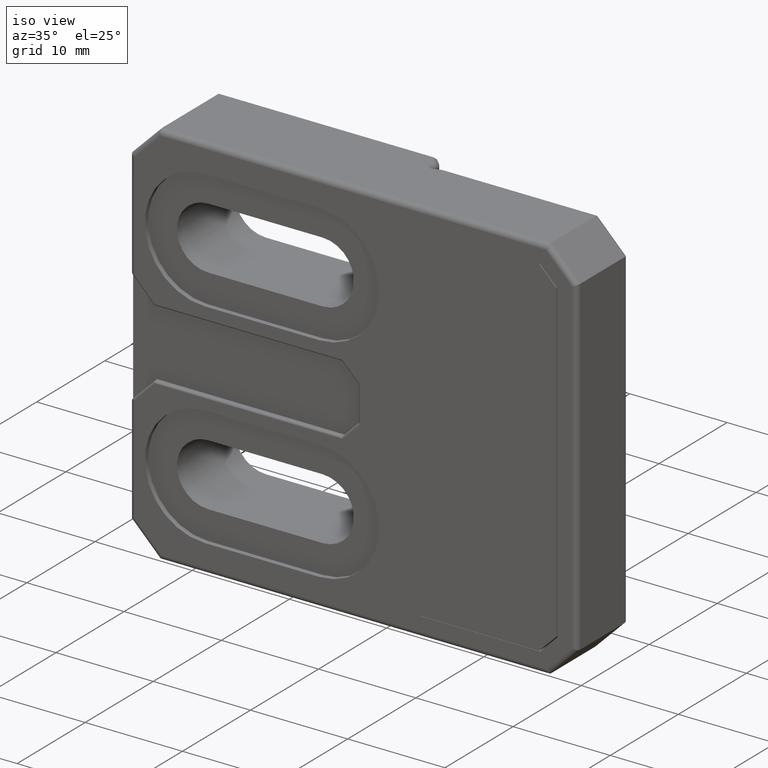
[diagram: clean part render]
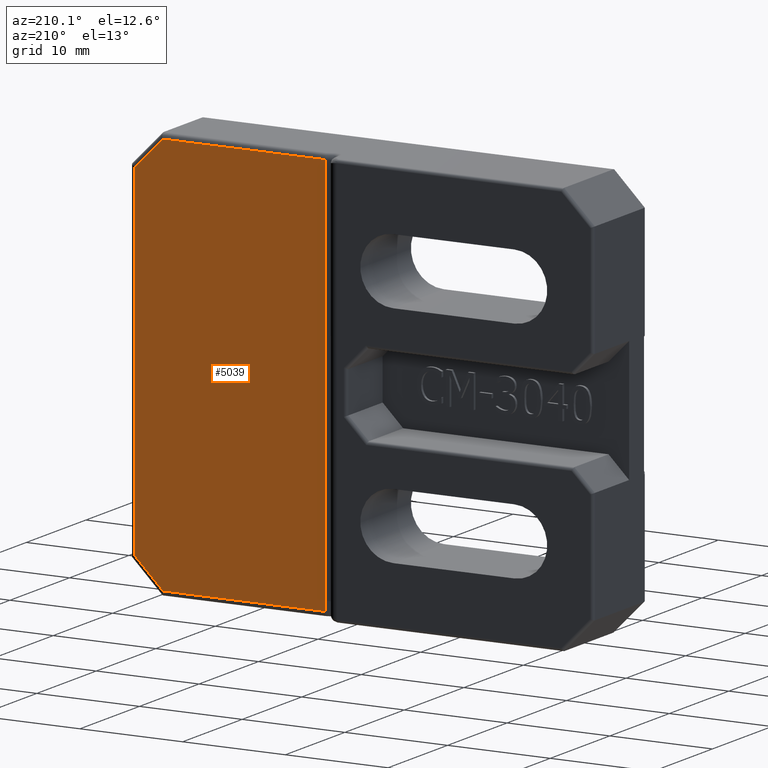
[diagram: tour spotlight — one face highlighted and labeled with its STEP entity id]
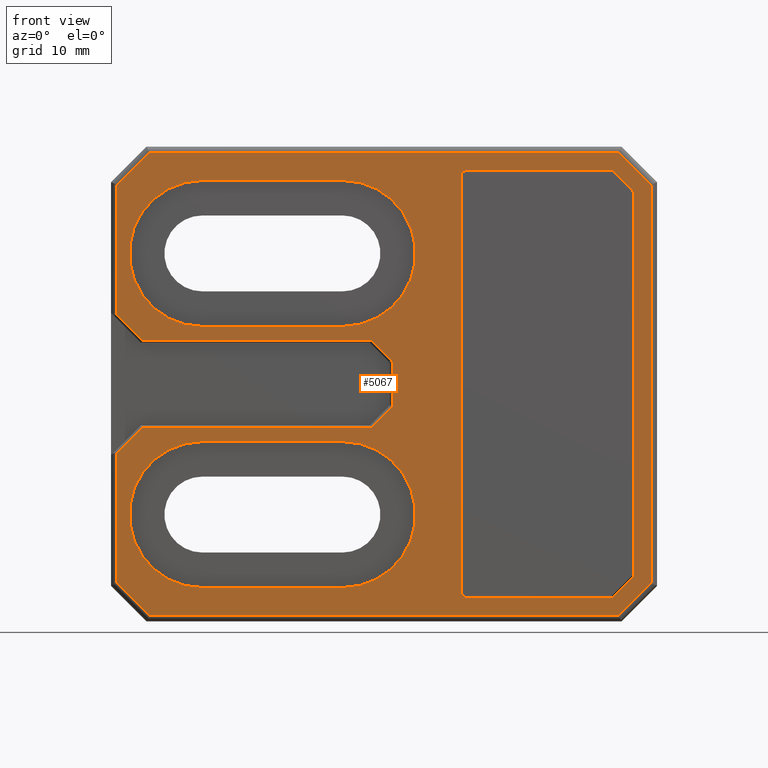
[diagram: tour spotlight — one face highlighted and labeled with its STEP entity id]
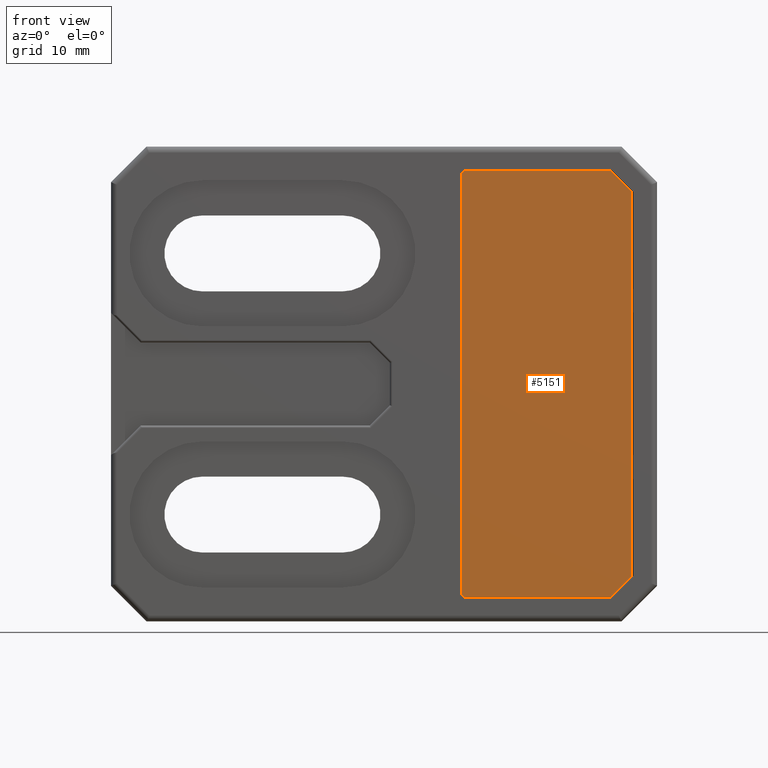
[diagram: tour spotlight — one face highlighted and labeled with its STEP entity id]
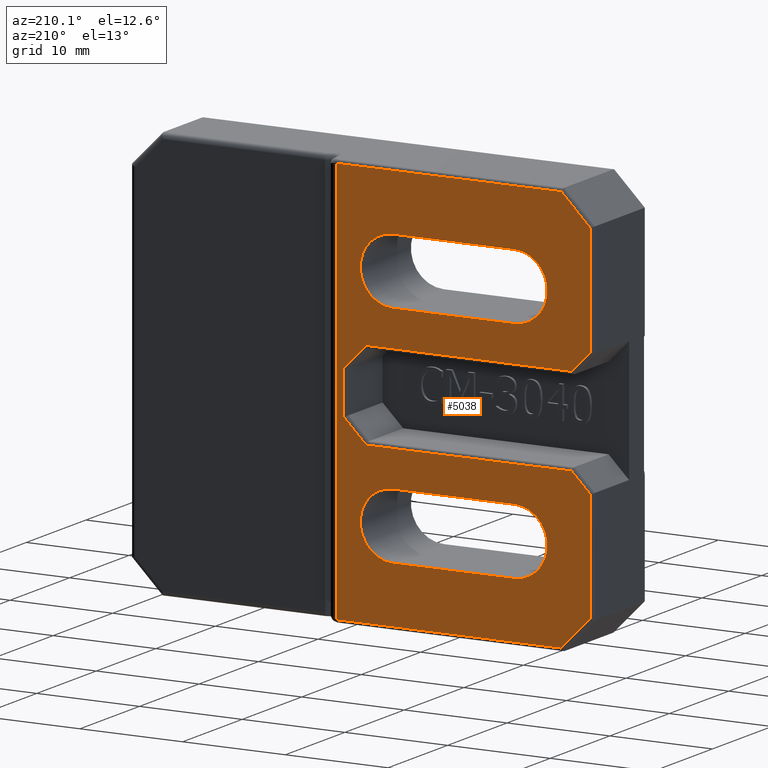
[diagram: tour spotlight — one face highlighted and labeled with its STEP entity id]
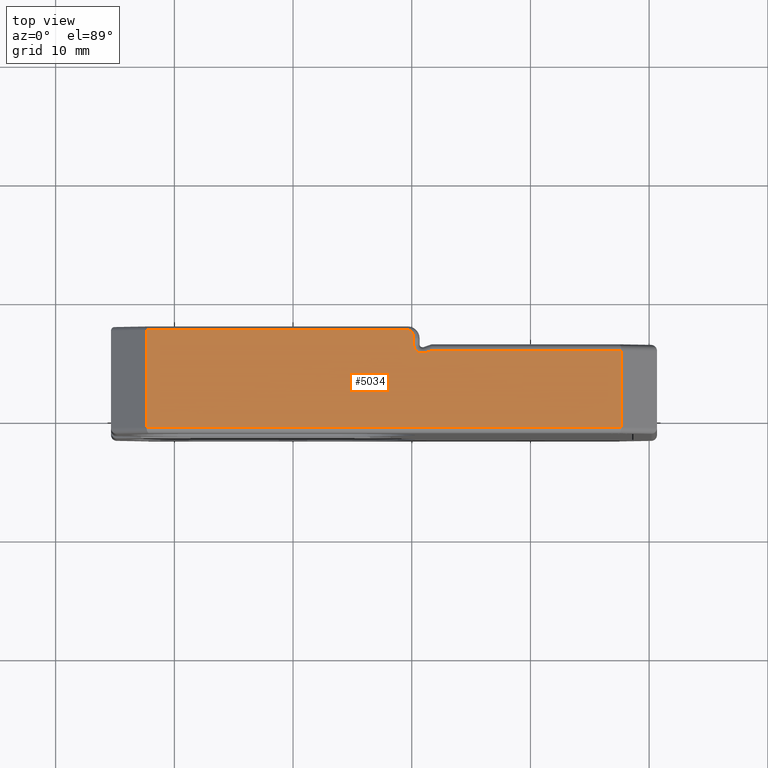
[diagram: tour spotlight — one face highlighted and labeled with its STEP entity id]
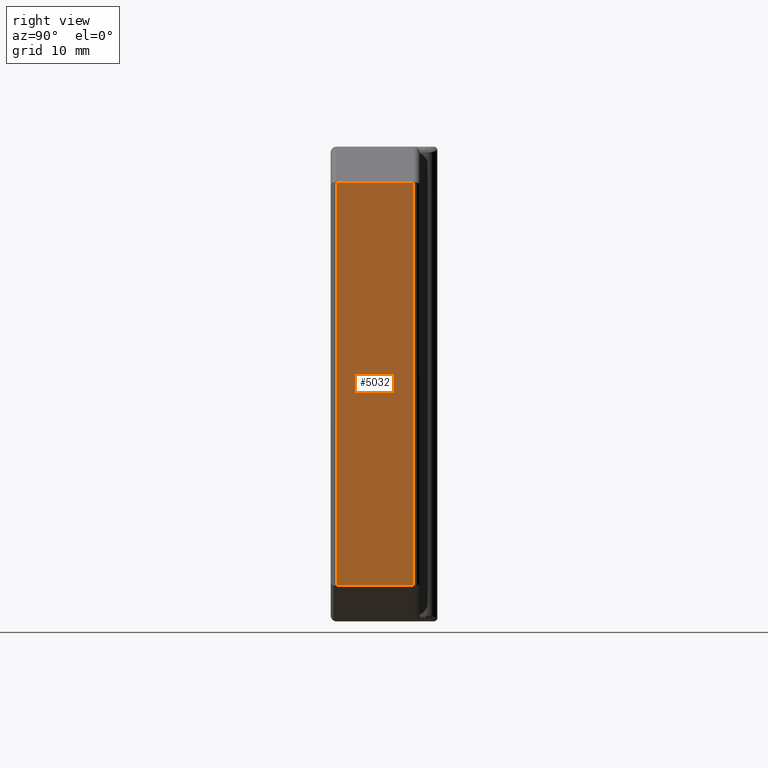
[diagram: tour spotlight — one face highlighted and labeled with its STEP entity id]
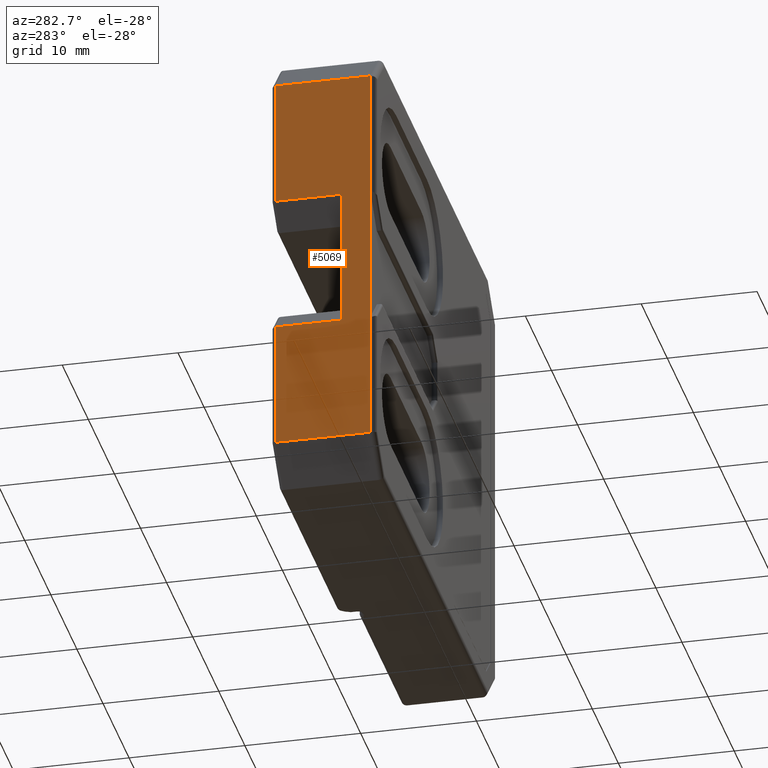
[diagram: tour spotlight — one face highlighted and labeled with its STEP entity id]
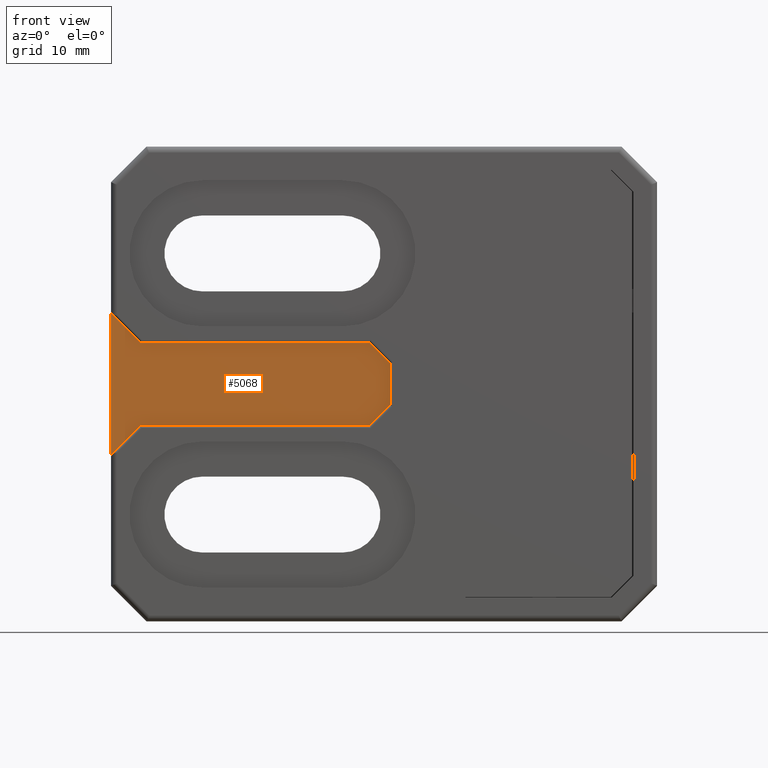
[diagram: tour spotlight — one face highlighted and labeled with its STEP entity id]
A machine part: a face-by-face anatomy tour. The part has 288 B-rep faces; the first image is the clean iso view, then the 8 largest visible faces are spotlighted one at a time (largest first), each with its STEP entity span.

Face 1 — auxiliary view, entity #5039. In plain terms, the highlighted planar face has unit normal (-0, 1, 0).
Definition (entity closure, byte-faithful):
#345=PLANE('',#5329);
#659=LINE('',#8195,#1176);
#663=LINE('',#8212,#1180);
#668=LINE('',#8232,#1185);
#671=LINE('',#8242,#1188);
#690=LINE('',#8471,#1207);
#709=LINE('',#8505,#1226);
#1176=VECTOR('',#5944,33.585786437627);
#1180=VECTOR('',#5960,3.82842712474613);
#1185=VECTOR('',#5977,15.7928932188135);
#1188=VECTOR('',#5988,15.7928932188135);
#1207=VECTOR('',#6057,3.82842712474613);
#1226=VECTOR('',#6094,39.);
#1703=FACE_OUTER_BOUND('',#2003,.T.);
#2003=EDGE_LOOP('',(#4267,#4268,#4269,#4270,#4271,#4272));
#2432=VERTEX_POINT('',#8193);
#2433=VERTEX_POINT('',#8194);
#2440=VERTEX_POINT('',#8211);
#2448=VERTEX_POINT('',#8229);
#2449=VERTEX_POINT('',#8231);
#2452=VERTEX_POINT('',#8241);
#3028=EDGE_CURVE('',#2432,#2433,#659,.T.);
#3036=EDGE_CURVE('',#2433,#2440,#663,.T.);
#3045=EDGE_CURVE('',#2448,#2449,#668,.T.);
#3050=EDGE_CURVE('',#2440,#2452,#671,.T.);
#3087=EDGE_CURVE('',#2449,#2432,#690,.T.);
#3106=EDGE_CURVE('',#2448,#2452,#709,.T.);
#4267=ORIENTED_EDGE('',*,*,#3045,.F.);
#4268=ORIENTED_EDGE('',*,*,#3106,.T.);
#4269=ORIENTED_EDGE('',*,*,#3050,.F.);
#4270=ORIENTED_EDGE('',*,*,#3036,.F.);
#4271=ORIENTED_EDGE('',*,*,#3028,.F.);
#4272=ORIENTED_EDGE('',*,*,#3087,.F.);
#5039=ADVANCED_FACE('',(#1703),#345,.T.);
#5329=AXIS2_PLACEMENT_3D('',#8526,#6114,#6115);
#5944=DIRECTION('',(0.,0.,1.));
#5960=DIRECTION('',(-0.707106781186547,-3.92523114670944E-17,0.707106781186548));
#5977=DIRECTION('',(1.,5.55111512312578E-17,0.));
#5988=DIRECTION('',(-1.,-5.55111512312578E-17,0.));
#6057=DIRECTION('',(0.707106781186547,3.92523114670944E-17,0.707106781186548));
#6094=DIRECTION('',(0.,0.,1.));
#6114=DIRECTION('center_axis',(-5.55111512312578E-17,1.,0.));
#6115=DIRECTION('ref_axis',(0.,0.,1.));
#8193=CARTESIAN_POINT('',(45.5,7.50000000000001,-16.7928932188135));
#8194=CARTESIAN_POINT('',(45.5,7.50000000000001,16.7928932188135));
#8195=CARTESIAN_POINT('',(45.5,7.50000000000001,0.));
#8211=CARTESIAN_POINT('',(42.7928932188135,7.50000000000001,19.5));
#8212=CARTESIAN_POINT('',(44.1464466094067,7.50000000000001,18.1464466094067));
#8229=CARTESIAN_POINT('',(27.,7.5,-19.5));
#8231=CARTESIAN_POINT('',(42.7928932188135,7.50000000000001,-19.5));
#8232=CARTESIAN_POINT('',(24.3636363636364,7.5,-19.5));
#8241=CARTESIAN_POINT('',(27.,7.5,19.5));
#8242=CARTESIAN_POINT('',(24.3636363636364,7.5,19.5));
#8471=CARTESIAN_POINT('',(44.1464466094067,7.50000000000001,-18.1464466094067));
#8505=CARTESIAN_POINT('',(27.,7.5,-10.));
#8526=CARTESIAN_POINT('Origin',(26.,7.5,0.));

Face 2 — front view, entity #5067. In plain terms, the highlighted planar face has unit normal (0, -1, 0).
Definition (entity closure, byte-faithful):
#74=FACE_BOUND('',#2032,.T.);
#75=FACE_BOUND('',#2033,.T.);
#76=FACE_BOUND('',#2034,.T.);
#355=PLANE('',#5377);
#747=LINE('',#8600,#1264);
#757=LINE('',#8628,#1274);
#759=LINE('',#8634,#1276);
#761=LINE('',#8640,#1278);
#763=LINE('',#8646,#1280);
#765=LINE('',#8652,#1282);
#767=LINE('',#8658,#1284);
#768=LINE('',#8662,#1285);
#783=LINE('',#8703,#1300);
#786=LINE('',#8712,#1303);
#787=LINE('',#8717,#1304);
#788=LINE('',#8722,#1305);
#790=LINE('',#8726,#1307);
#791=LINE('',#8730,#1308);
#792=LINE('',#8733,#1309);
#793=LINE('',#8736,#1310);
#795=LINE('',#8740,#1312);
#796=LINE('',#8744,#1313);
#797=LINE('',#8748,#1314);
#798=LINE('',#8752,#1315);
#799=LINE('',#8756,#1316);
#800=LINE('',#8759,#1317);
#801=LINE('',#8761,#1318);
#802=LINE('',#8763,#1319);
#803=LINE('',#8765,#1320);
#804=LINE('',#8766,#1321);
#1264=VECTOR('',#6160,35.);
#1274=VECTOR('',#6176,2.9455844122716);
#1276=VECTOR('',#6182,19.2928932188135);
#1278=VECTOR('',#6188,2.57989898732231);
#1280=VECTOR('',#6194,3.75147186257615);
#1282=VECTOR('',#6200,2.57989898732232);
#1284=VECTOR('',#6206,19.2928932188135);
#1285=VECTOR('',#6211,2.94558441227157);
#1300=VECTOR('',#6246,11.0100505063389);
#1303=VECTOR('',#6255,11.0100505063388);
#1304=VECTOR('',#6260,3.82842712474613);
#1305=VECTOR('',#6267,33.585786437627);
#1307=VECTOR('',#6271,3.82842712474616);
#1308=VECTOR('',#6276,39.5857864376269);
#1309=VECTOR('',#6281,3.82842712474613);
#1310=VECTOR('',#6284,39.5857864376269);
#1312=VECTOR('',#6290,3.82842712474616);
#1313=VECTOR('',#6293,11.8);
#1314=VECTOR('',#6296,11.8);
#1315=VECTOR('',#6299,11.8);
#1316=VECTOR('',#6302,11.8);
#1317=VECTOR('',#6305,12.2);
#1318=VECTOR('',#6306,2.54558441227157);
#1319=VECTOR('',#6307,32.4);
#1320=VECTOR('',#6308,2.54558441227157);
#1321=VECTOR('',#6309,12.2);
#1731=FACE_OUTER_BOUND('',#2031,.T.);
#2031=EDGE_LOOP('',(#4419,#4420,#4421,#4422,#4423,#4424,#4425,#4426,#4427,
#4428,#4429,#4430,#4431,#4432,#4433,#4434));
#2032=EDGE_LOOP('',(#4435,#4436,#4437,#4438));
#2033=EDGE_LOOP('',(#4439,#4440,#4441,#4442));
#2034=EDGE_LOOP('',(#4443,#4444,#4445,#4446,#4447,#4448,#4449,#4450));
#2165=CIRCLE('',#5332,0.5);
#2167=CIRCLE('',#5337,0.5);
#2168=CIRCLE('',#5378,6.15);
#2169=CIRCLE('',#5379,6.15);
#2170=CIRCLE('',#5380,6.15);
#2171=CIRCLE('',#5381,6.15);
#2488=VERTEX_POINT('',#8531);
#2489=VERTEX_POINT('',#8533);
#2520=VERTEX_POINT('',#8599);
#2525=VERTEX_POINT('',#8613);
#2528=VERTEX_POINT('',#8620);
#2529=VERTEX_POINT('',#8627);
#2531=VERTEX_POINT('',#8633);
#2533=VERTEX_POINT('',#8639);
#2535=VERTEX_POINT('',#8645);
#2537=VERTEX_POINT('',#8651);
#2539=VERTEX_POINT('',#8657);
#2540=VERTEX_POINT('',#8661);
#2550=VERTEX_POINT('',#8702);
#2553=VERTEX_POINT('',#8710);
#2554=VERTEX_POINT('',#8714);
#2555=VERTEX_POINT('',#8716);
#2556=VERTEX_POINT('',#8720);
#2557=VERTEX_POINT('',#8725);
#2558=VERTEX_POINT('',#8729);
#2559=VERTEX_POINT('',#8735);
#2560=VERTEX_POINT('',#8742);
#2561=VERTEX_POINT('',#8743);
#2562=VERTEX_POINT('',#8745);
#2563=VERTEX_POINT('',#8747);
#2564=VERTEX_POINT('',#8750);
#2565=VERTEX_POINT('',#8751);
#2566=VERTEX_POINT('',#8753);
#2567=VERTEX_POINT('',#8755);
#2568=VERTEX_POINT('',#8758);
#2569=VERTEX_POINT('',#8760);
#2570=VERTEX_POINT('',#8762);
#2571=VERTEX_POINT('',#8764);
#3118=EDGE_CURVE('',#2488,#2489,#2165,.T.);
#3151=EDGE_CURVE('',#2520,#2489,#747,.T.);
#3159=EDGE_CURVE('',#2520,#2525,#2167,.T.);
#3163=EDGE_CURVE('',#2528,#2529,#757,.T.);
#3166=EDGE_CURVE('',#2529,#2531,#759,.T.);
#3169=EDGE_CURVE('',#2531,#2533,#761,.T.);
#3172=EDGE_CURVE('',#2533,#2535,#763,.T.);
#3175=EDGE_CURVE('',#2535,#2537,#765,.T.);
#3178=EDGE_CURVE('',#2537,#2539,#767,.T.);
#3180=EDGE_CURVE('',#2539,#2540,#768,.T.);
#3198=EDGE_CURVE('',#2540,#2550,#783,.T.);
#3203=EDGE_CURVE('',#2553,#2528,#786,.T.);
#3205=EDGE_CURVE('',#2554,#2555,#787,.T.);
#3208=EDGE_CURVE('',#2556,#2554,#788,.T.);
#3210=EDGE_CURVE('',#2550,#2557,#790,.T.);
#3212=EDGE_CURVE('',#2557,#2558,#791,.T.);
#3214=EDGE_CURVE('',#2558,#2556,#792,.T.);
#3215=EDGE_CURVE('',#2555,#2559,#793,.T.);
#3218=EDGE_CURVE('',#2559,#2553,#795,.T.);
#3219=EDGE_CURVE('',#2560,#2561,#796,.T.);
#3220=EDGE_CURVE('',#2561,#2562,#2168,.T.);
#3221=EDGE_CURVE('',#2562,#2563,#797,.T.);
#3222=EDGE_CURVE('',#2563,#2560,#2169,.T.);
#3223=EDGE_CURVE('',#2564,#2565,#798,.T.);
#3224=EDGE_CURVE('',#2565,#2566,#2170,.T.);
#3225=EDGE_CURVE('',#2566,#2567,#799,.T.);
#3226=EDGE_CURVE('',#2567,#2564,#2171,.T.);
#3227=EDGE_CURVE('',#2488,#2568,#800,.T.);
#3228=EDGE_CURVE('',#2568,#2569,#801,.T.);
#3229=EDGE_CURVE('',#2569,#2570,#802,.T.);
#3230=EDGE_CURVE('',#2570,#2571,#803,.T.);
#3231=EDGE_CURVE('',#2571,#2525,#804,.T.);
#4419=ORIENTED_EDGE('',*,*,#3163,.F.);
#4420=ORIENTED_EDGE('',*,*,#3203,.F.);
#4421=ORIENTED_EDGE('',*,*,#3218,.F.);
#4422=ORIENTED_EDGE('',*,*,#3215,.F.);
#4423=ORIENTED_EDGE('',*,*,#3205,.F.);
#4424=ORIENTED_EDGE('',*,*,#3208,.F.);
#4425=ORIENTED_EDGE('',*,*,#3214,.F.);
#4426=ORIENTED_EDGE('',*,*,#3212,.F.);
#4427=ORIENTED_EDGE('',*,*,#3210,.F.);
#4428=ORIENTED_EDGE('',*,*,#3198,.F.);
#4429=ORIENTED_EDGE('',*,*,#3180,.F.);
#4430=ORIENTED_EDGE('',*,*,#3178,.F.);
#4431=ORIENTED_EDGE('',*,*,#3175,.F.);
#4432=ORIENTED_EDGE('',*,*,#3172,.F.);
#4433=ORIENTED_EDGE('',*,*,#3169,.F.);
#4434=ORIENTED_EDGE('',*,*,#3166,.F.);
#4435=ORIENTED_EDGE('',*,*,#3219,.T.);
#4436=ORIENTED_EDGE('',*,*,#3220,.T.);
#4437=ORIENTED_EDGE('',*,*,#3221,.T.);
#4438=ORIENTED_EDGE('',*,*,#3222,.T.);
#4439=ORIENTED_EDGE('',*,*,#3223,.T.);
#4440=ORIENTED_EDGE('',*,*,#3224,.T.);
#4441=ORIENTED_EDGE('',*,*,#3225,.T.);
#4442=ORIENTED_EDGE('',*,*,#3226,.T.);
#4443=ORIENTED_EDGE('',*,*,#3227,.T.);
#4444=ORIENTED_EDGE('',*,*,#3228,.T.);
#4445=ORIENTED_EDGE('',*,*,#3229,.T.);
#4446=ORIENTED_EDGE('',*,*,#3230,.T.);
#4447=ORIENTED_EDGE('',*,*,#3231,.T.);
#4448=ORIENTED_EDGE('',*,*,#3159,.F.);
#4449=ORIENTED_EDGE('',*,*,#3151,.T.);
#4450=ORIENTED_EDGE('',*,*,#3118,.F.);
#5067=ADVANCED_FACE('',(#1731,#74,#75,#76),#355,.T.);
#5332=AXIS2_PLACEMENT_3D('',#8534,#6121,#6122);
#5337=AXIS2_PLACEMENT_3D('',#8614,#6170,#6171);
#5377=AXIS2_PLACEMENT_3D('',#8741,#6291,#6292);
#5378=AXIS2_PLACEMENT_3D('',#8746,#6294,#6295);
#5379=AXIS2_PLACEMENT_3D('',#8749,#6297,#6298);
#5380=AXIS2_PLACEMENT_3D('',#8754,#6300,#6301);
#5381=AXIS2_PLACEMENT_3D('',#8757,#6303,#6304);
#6121=DIRECTION('center_axis',(1.83697019872103E-16,-1.,0.));
#6122=DIRECTION('ref_axis',(-0.707106781186548,-1.29893408435324E-16,0.707106781186548));
#6160=DIRECTION('',(-2.46716227694479E-16,-4.5321035781563E-32,1.));
#6170=DIRECTION('center_axis',(1.83697019872103E-16,-1.,0.));
#6171=DIRECTION('ref_axis',(-0.707106781186544,-1.29893408435323E-16,-0.707106781186551));
#6176=DIRECTION('',(0.707106781186541,1.29893408435323E-16,0.707106781186554));
#6182=DIRECTION('',(1.,1.83697019872103E-16,2.30182795713091E-16));
#6188=DIRECTION('',(0.707106781186548,1.29893408435324E-16,0.707106781186547));
#6194=DIRECTION('',(0.,0.,1.));
#6200=DIRECTION('',(-0.707106781186548,-1.29893408435324E-16,0.707106781186547));
#6206=DIRECTION('',(-1.,-1.83697019872103E-16,1.15091397856546E-16));
#6211=DIRECTION('',(-0.707106781186547,-1.29893408435324E-16,0.707106781186548));
#6246=DIRECTION('',(0.,0.,1.));
#6255=DIRECTION('',(0.,0.,1.));
#6260=DIRECTION('',(-0.707106781186547,-1.29893408435324E-16,-0.707106781186548));
#6267=DIRECTION('',(0.,0.,-1.));
#6271=DIRECTION('',(0.707106781186547,1.29893408435324E-16,0.707106781186548));
#6276=DIRECTION('',(1.,1.83697019872103E-16,0.));
#6281=DIRECTION('',(0.707106781186547,1.29893408435324E-16,-0.707106781186548));
#6284=DIRECTION('',(-1.,-1.83697019872103E-16,0.));
#6290=DIRECTION('',(-0.707106781186547,-1.29893408435324E-16,0.707106781186548));
#6291=DIRECTION('center_axis',(1.83697019872103E-16,-1.,0.));
#6292=DIRECTION('ref_axis',(0.,0.,-1.));
#6293=DIRECTION('',(-1.,-1.83697019872103E-16,0.));
#6294=DIRECTION('center_axis',(-1.83697019872103E-16,1.,0.));
#6295=DIRECTION('ref_axis',(2.25655086305926E-15,4.14521668733808E-31,-1.));
#6296=DIRECTION('',(1.,1.83697019872103E-16,7.52693576017055E-16));
#6297=DIRECTION('center_axis',(-1.83697019872103E-16,1.,0.));
#6298=DIRECTION('ref_axis',(7.22096276178963E-16,1.32646933994819E-31,1.));
#6299=DIRECTION('',(-1.,-1.83697019872103E-16,1.88173394004264E-16));
#6300=DIRECTION('center_axis',(-1.83697019872103E-16,1.,0.));
#6301=DIRECTION('ref_axis',(1.44419255235793E-15,2.65293867989638E-31,-1.));
#6302=DIRECTION('',(1.,1.83697019872103E-16,0.));
#6303=DIRECTION('center_axis',(-1.83697019872103E-16,1.,0.));
#6304=DIRECTION('ref_axis',(1.80524069044741E-15,3.31617334987047E-31,1.));
#6305=DIRECTION('',(1.,1.83697019872103E-16,2.62257407391769E-16));
#6306=DIRECTION('',(0.707106781186548,1.29893408435324E-16,-0.707106781186547));
#6307=DIRECTION('',(5.48258283765509E-16,1.00713412847918E-31,-1.));
#6308=DIRECTION('',(-0.707106781186549,-1.29893408435324E-16,-0.707106781186546));
#6309=DIRECTION('',(-1.,-1.83697019872103E-16,0.));
#8531=CARTESIAN_POINT('',(30.,5.51091059616309E-15,18.));
#8533=CARTESIAN_POINT('',(29.5,5.41906208622704E-15,17.5));
#8534=CARTESIAN_POINT('Origin',(30.,8.45006291411674E-15,17.5));
#8599=CARTESIAN_POINT('',(29.5,5.41906208622704E-15,-17.5));
#8600=CARTESIAN_POINT('',(29.5,5.41906208622704E-15,-9.));
#8613=CARTESIAN_POINT('',(30.,5.51091059616309E-15,-18.));
#8614=CARTESIAN_POINT('Origin',(30.,8.45006291411674E-15,-17.5));
#8620=CARTESIAN_POINT('',(0.499999999999998,1.38777878078145E-16,-5.78284271247467));
#8627=CARTESIAN_POINT('',(2.58284271247462,4.92788796194606E-16,-3.70000000000001));
#8628=CARTESIAN_POINT('',(14.3914213562371,2.67147415300428E-15,8.10857864376271));
#8633=CARTESIAN_POINT('',(21.8757359312881,4.04174201140011E-15,-3.7));
#8634=CARTESIAN_POINT('',(33.8964466094067,6.24500451351651E-15,-3.7));
#8639=CARTESIAN_POINT('',(23.7,4.37150315946155E-15,-1.87573593128808));
#8640=CARTESIAN_POINT('',(29.7146446609407,5.48172618408671E-15,4.1389087296526));
#8645=CARTESIAN_POINT('',(23.7,4.36017675083828E-15,1.87573593128807));
#8646=CARTESIAN_POINT('',(23.7,4.37150315946155E-15,0.896446609406726));
#8651=CARTESIAN_POINT('',(21.8757359312881,4.03944133420837E-15,3.7));
#8652=CARTESIAN_POINT('',(28.8610912703474,5.30825383648903E-15,-3.28535533905933));
#8657=CARTESIAN_POINT('',(2.58284271247461,4.89033435423093E-16,3.7));
#8658=CARTESIAN_POINT('',(24.25,4.47558656802016E-15,3.7));
#8661=CARTESIAN_POINT('',(0.499999999999998,1.38777878078145E-16,5.78284271247462));
#8662=CARTESIAN_POINT('',(13.1414213562373,2.42861286636753E-15,-6.85857864376269));
#8702=CARTESIAN_POINT('',(0.499999999999997,8.38823056011555E-17,16.7928932188135));
#8703=CARTESIAN_POINT('',(0.499999999999998,1.38777878078145E-16,0.));
#8710=CARTESIAN_POINT('',(0.499999999999998,1.38777878078145E-16,-16.7928932188135));
#8712=CARTESIAN_POINT('',(0.499999999999998,1.38777878078145E-16,0.));
#8714=CARTESIAN_POINT('',(45.5,8.35072069980865E-15,-16.7928932188135));
#8716=CARTESIAN_POINT('',(42.7928932188135,7.86282281658811E-15,-19.5));
#8717=CARTESIAN_POINT('',(49.1464466094067,9.0205620750794E-15,-13.1464466094067));
#8720=CARTESIAN_POINT('',(45.5,8.39606162372775E-15,16.7928932188135));
#8722=CARTESIAN_POINT('',(45.5,8.39606162372775E-15,0.));
#8725=CARTESIAN_POINT('',(3.20710678118655,5.91031818702528E-16,19.5));
#8726=CARTESIAN_POINT('',(8.35355339059327,1.52655665885959E-15,24.6464466094067));
#8729=CARTESIAN_POINT('',(42.7928932188135,7.85343325162912E-15,19.5));
#8730=CARTESIAN_POINT('',(34.3636363636364,6.31439345255558E-15,19.5));
#8733=CARTESIAN_POINT('',(49.1464466094067,9.0205620750794E-15,13.1464466094067));
#8735=CARTESIAN_POINT('',(3.20710678118655,5.81169753780686E-16,-19.5));
#8736=CARTESIAN_POINT('',(34.3636363636364,6.31439345255558E-15,-19.5));
#8740=CARTESIAN_POINT('',(8.35355339059327,1.52655665885959E-15,-24.6464466094067));
#8741=CARTESIAN_POINT('Origin',(46.,8.45006291411674E-15,0.));
#8742=CARTESIAN_POINT('',(19.5,3.58209188750601E-15,-17.15));
#8743=CARTESIAN_POINT('',(7.7,1.41446705301519E-15,-17.15));
#8744=CARTESIAN_POINT('',(32.75,6.01607740081137E-15,-17.15));
#8745=CARTESIAN_POINT('',(7.69999999999999,1.41446705301519E-15,-4.85));
#8746=CARTESIAN_POINT('Origin',(7.7,8.45006291411674E-15,-11.));
#8747=CARTESIAN_POINT('',(19.5,3.58209188750601E-15,-4.84999999999999));
#8748=CARTESIAN_POINT('',(26.85,4.93226498356596E-15,-4.84999999999999));
#8749=CARTESIAN_POINT('Origin',(19.5,8.45006291411674E-15,-11.));
#8750=CARTESIAN_POINT('',(19.5,3.58209188750601E-15,4.85));
#8751=CARTESIAN_POINT('',(7.69999999999999,1.41446705301519E-15,4.85));
#8752=CARTESIAN_POINT('',(32.75,6.01607740081137E-15,4.85));
#8753=CARTESIAN_POINT('',(7.7,1.41446705301519E-15,17.15));
#8754=CARTESIAN_POINT('Origin',(7.7,8.45006291411674E-15,11.));
#8755=CARTESIAN_POINT('',(19.5,3.58209188750601E-15,17.15));
#8756=CARTESIAN_POINT('',(26.85,4.93226498356597E-15,17.15));
#8757=CARTESIAN_POINT('Origin',(19.5,8.45006291411674E-15,11.));
#8758=CARTESIAN_POINT('',(42.2,7.75201423860274E-15,18.));
#8759=CARTESIAN_POINT('',(37.75,6.93456250017189E-15,18.));
#8760=CARTESIAN_POINT('',(44.,8.08266887437253E-15,16.2));
#8761=CARTESIAN_POINT('',(47.65,8.75316299690571E-15,12.55));
#8762=CARTESIAN_POINT('',(44.,8.08266887437253E-15,-16.2));
#8763=CARTESIAN_POINT('',(44.,8.08266887437253E-15,8.1));
#8764=CARTESIAN_POINT('',(42.2,7.75201423860275E-15,-18.));
#8765=CARTESIAN_POINT('',(48.55,8.9184903147906E-15,-11.65));
#8766=CARTESIAN_POINT('',(44.1,8.10103857635974E-15,-18.));

Face 3 — front view, entity #5151. In plain terms, the highlighted planar face has unit normal (0, -1, -0).
Definition (entity closure, byte-faithful):
#429=PLANE('',#5478);
#928=LINE('',#9041,#1445);
#932=LINE('',#9049,#1449);
#935=LINE('',#9055,#1452);
#939=LINE('',#9067,#1456);
#943=LINE('',#9079,#1460);
#946=LINE('',#9084,#1463);
#1445=VECTOR('',#6603,32.4);
#1449=VECTOR('',#6609,2.54558441227157);
#1452=VECTOR('',#6614,12.2);
#1456=VECTOR('',#6626,35.);
#1460=VECTOR('',#6638,12.2);
#1463=VECTOR('',#6643,2.54558441227157);
#1815=FACE_OUTER_BOUND('',#2120,.T.);
#2120=EDGE_LOOP('',(#4833,#4834,#4835,#4836,#4837,#4838,#4839,#4840));
#2180=CIRCLE('',#5470,0.5);
#2182=CIRCLE('',#5474,0.500000000000003);
#2636=VERTEX_POINT('',#9039);
#2637=VERTEX_POINT('',#9040);
#2640=VERTEX_POINT('',#9048);
#2642=VERTEX_POINT('',#9054);
#2644=VERTEX_POINT('',#9060);
#2646=VERTEX_POINT('',#9066);
#2648=VERTEX_POINT('',#9072);
#2650=VERTEX_POINT('',#9078);
#3363=EDGE_CURVE('',#2636,#2637,#928,.T.);
#3367=EDGE_CURVE('',#2637,#2640,#932,.T.);
#3370=EDGE_CURVE('',#2640,#2642,#935,.T.);
#3373=EDGE_CURVE('',#2642,#2644,#2180,.T.);
#3376=EDGE_CURVE('',#2644,#2646,#939,.T.);
#3379=EDGE_CURVE('',#2646,#2648,#2182,.T.);
#3382=EDGE_CURVE('',#2648,#2650,#943,.T.);
#3385=EDGE_CURVE('',#2650,#2636,#946,.T.);
#4833=ORIENTED_EDGE('',*,*,#3363,.F.);
#4834=ORIENTED_EDGE('',*,*,#3385,.F.);
#4835=ORIENTED_EDGE('',*,*,#3382,.F.);
#4836=ORIENTED_EDGE('',*,*,#3379,.F.);
#4837=ORIENTED_EDGE('',*,*,#3376,.F.);
#4838=ORIENTED_EDGE('',*,*,#3373,.F.);
#4839=ORIENTED_EDGE('',*,*,#3370,.F.);
#4840=ORIENTED_EDGE('',*,*,#3367,.F.);
#5151=ADVANCED_FACE('',(#1815),#429,.T.);
#5470=AXIS2_PLACEMENT_3D('',#9061,#6619,#6620);
#5474=AXIS2_PLACEMENT_3D('',#9073,#6631,#6632);
#5478=AXIS2_PLACEMENT_3D('',#9086,#6645,#6646);
#6603=DIRECTION('',(6.85322854706887E-16,-1.,0.));
#6609=DIRECTION('',(-0.707106781186548,-0.707106781186548,0.));
#6614=DIRECTION('',(-1.,-9.1001887264357E-16,0.));
#6619=DIRECTION('center_axis',(0.,0.,-1.));
#6620=DIRECTION('ref_axis',(1.,0.,0.));
#6626=DIRECTION('',(-3.04363299867923E-16,1.,0.));
#6631=DIRECTION('center_axis',(0.,0.,-1.));
#6632=DIRECTION('ref_axis',(0.,-1.,0.));
#6638=DIRECTION('',(1.,9.1001887264357E-16,0.));
#6643=DIRECTION('',(0.707106781186543,-0.707106781186552,0.));
#6645=DIRECTION('center_axis',(0.,0.,1.));
#6646=DIRECTION('ref_axis',(1.,0.,0.));
#9039=CARTESIAN_POINT('',(14.5,16.2,1.5));
#9040=CARTESIAN_POINT('',(14.5,-16.2,1.5));
#9041=CARTESIAN_POINT('',(14.5,16.2,1.5));
#9048=CARTESIAN_POINT('',(12.7,-18.,1.5));
#9049=CARTESIAN_POINT('',(14.5,-16.2,1.5));
#9054=CARTESIAN_POINT('',(0.500000000000007,-18.,1.5));
#9055=CARTESIAN_POINT('',(12.7,-18.,1.5));
#9060=CARTESIAN_POINT('',(6.45317133063372E-15,-17.5,1.5));
#9061=CARTESIAN_POINT('Origin',(0.500000000000007,-17.5,1.5));
#9066=CARTESIAN_POINT('',(-4.1995441647436E-15,17.5,1.5));
#9067=CARTESIAN_POINT('',(6.45317133063372E-15,-17.5,1.5));
#9072=CARTESIAN_POINT('',(0.499999999999996,18.,1.5));
#9073=CARTESIAN_POINT('Origin',(0.499999999999996,17.5,1.5));
#9078=CARTESIAN_POINT('',(12.7,18.,1.5));
#9079=CARTESIAN_POINT('',(0.499999999999996,18.,1.5));
#9084=CARTESIAN_POINT('',(12.7,18.,1.5));
#9086=CARTESIAN_POINT('Origin',(7.11316276021742,3.42200554435566E-15,1.5));

Face 4 — auxiliary view, entity #5038. In plain terms, the highlighted planar face has unit normal (-0, 1, 0).
Definition (entity closure, byte-faithful):
#72=FACE_BOUND('',#2001,.T.);
#73=FACE_BOUND('',#2002,.T.);
#344=PLANE('',#5324);
#651=LINE('',#8165,#1168);
#653=LINE('',#8173,#1170);
#655=LINE('',#8179,#1172);
#658=LINE('',#8190,#1175);
#661=LINE('',#8204,#1178);
#666=LINE('',#8223,#1183);
#669=LINE('',#8236,#1186);
#673=LINE('',#8425,#1190);
#676=LINE('',#8431,#1193);
#685=LINE('',#8464,#1202);
#688=LINE('',#8468,#1205);
#692=LINE('',#8474,#1209);
#693=LINE('',#8476,#1210);
#696=LINE('',#8480,#1213);
#711=LINE('',#8514,#1228);
#712=LINE('',#8517,#1229);
#713=LINE('',#8522,#1230);
#714=LINE('',#8525,#1231);
#1168=VECTOR('',#5916,4.24852813742386);
#1170=VECTOR('',#5924,3.07695526217007);
#1172=VECTOR('',#5930,20.);
#1175=VECTOR('',#5939,20.);
#1178=VECTOR('',#5952,10.7514718625762);
#1183=VECTOR('',#5969,10.7514718625762);
#1186=VECTOR('',#5982,3.99411254969541);
#1190=VECTOR('',#6002,39.4);
#1193=VECTOR('',#6007,21.8757359312881);
#1202=VECTOR('',#6048,21.8757359312881);
#1205=VECTOR('',#6053,3.99411254969541);
#1209=VECTOR('',#6061,2.57989898732233);
#1210=VECTOR('',#6064,2.57989898732234);
#1213=VECTOR('',#6069,3.07695526217007);
#1228=VECTOR('',#6104,11.8);
#1229=VECTOR('',#6107,11.8);
#1230=VECTOR('',#6110,11.8);
#1231=VECTOR('',#6113,11.8);
#1702=FACE_OUTER_BOUND('',#2000,.T.);
#2000=EDGE_LOOP('',(#4245,#4246,#4247,#4248,#4249,#4250,#4251,#4252,#4253,
#4254,#4255,#4256,#4257,#4258));
#2001=EDGE_LOOP('',(#4259,#4260,#4261,#4262));
#2002=EDGE_LOOP('',(#4263,#4264,#4265,#4266));
#2160=CIRCLE('',#5325,3.2);
#2161=CIRCLE('',#5326,3.2);
#2162=CIRCLE('',#5327,3.2);
#2163=CIRCLE('',#5328,3.2);
#2420=VERTEX_POINT('',#8163);
#2421=VERTEX_POINT('',#8164);
#2424=VERTEX_POINT('',#8172);
#2426=VERTEX_POINT('',#8178);
#2430=VERTEX_POINT('',#8187);
#2431=VERTEX_POINT('',#8189);
#2436=VERTEX_POINT('',#8202);
#2437=VERTEX_POINT('',#8203);
#2444=VERTEX_POINT('',#8220);
#2445=VERTEX_POINT('',#8222);
#2450=VERTEX_POINT('',#8235);
#2454=VERTEX_POINT('',#8312);
#2460=VERTEX_POINT('',#8405);
#2463=VERTEX_POINT('',#8430);
#2478=VERTEX_POINT('',#8510);
#2479=VERTEX_POINT('',#8511);
#2480=VERTEX_POINT('',#8513);
#2481=VERTEX_POINT('',#8515);
#2482=VERTEX_POINT('',#8518);
#2483=VERTEX_POINT('',#8519);
#2484=VERTEX_POINT('',#8521);
#2485=VERTEX_POINT('',#8523);
#3014=EDGE_CURVE('',#2420,#2421,#651,.T.);
#3018=EDGE_CURVE('',#2421,#2424,#653,.T.);
#3021=EDGE_CURVE('',#2424,#2426,#655,.T.);
#3026=EDGE_CURVE('',#2430,#2431,#658,.T.);
#3032=EDGE_CURVE('',#2436,#2437,#661,.T.);
#3041=EDGE_CURVE('',#2444,#2445,#666,.T.);
#3047=EDGE_CURVE('',#2437,#2450,#669,.T.);
#3061=EDGE_CURVE('',#2454,#2460,#673,.T.);
#3064=EDGE_CURVE('',#2460,#2463,#676,.T.);
#3082=EDGE_CURVE('',#2450,#2454,#685,.T.);
#3085=EDGE_CURVE('',#2463,#2444,#688,.T.);
#3089=EDGE_CURVE('',#2445,#2430,#692,.T.);
#3090=EDGE_CURVE('',#2426,#2436,#693,.T.);
#3093=EDGE_CURVE('',#2431,#2420,#696,.T.);
#3108=EDGE_CURVE('',#2478,#2479,#2160,.T.);
#3109=EDGE_CURVE('',#2479,#2480,#711,.T.);
#3110=EDGE_CURVE('',#2480,#2481,#2161,.T.);
#3111=EDGE_CURVE('',#2481,#2478,#712,.T.);
#3112=EDGE_CURVE('',#2482,#2483,#2162,.T.);
#3113=EDGE_CURVE('',#2483,#2484,#713,.T.);
#3114=EDGE_CURVE('',#2484,#2485,#2163,.T.);
#3115=EDGE_CURVE('',#2485,#2482,#714,.T.);
#4245=ORIENTED_EDGE('',*,*,#3061,.F.);
#4246=ORIENTED_EDGE('',*,*,#3082,.F.);
#4247=ORIENTED_EDGE('',*,*,#3047,.F.);
#4248=ORIENTED_EDGE('',*,*,#3032,.F.);
#4249=ORIENTED_EDGE('',*,*,#3090,.F.);
#4250=ORIENTED_EDGE('',*,*,#3021,.F.);
#4251=ORIENTED_EDGE('',*,*,#3018,.F.);
#4252=ORIENTED_EDGE('',*,*,#3014,.F.);
#4253=ORIENTED_EDGE('',*,*,#3093,.F.);
#4254=ORIENTED_EDGE('',*,*,#3026,.F.);
#4255=ORIENTED_EDGE('',*,*,#3089,.F.);
#4256=ORIENTED_EDGE('',*,*,#3041,.F.);
#4257=ORIENTED_EDGE('',*,*,#3085,.F.);
#4258=ORIENTED_EDGE('',*,*,#3064,.F.);
#4259=ORIENTED_EDGE('',*,*,#3108,.T.);
#4260=ORIENTED_EDGE('',*,*,#3109,.T.);
#4261=ORIENTED_EDGE('',*,*,#3110,.T.);
#4262=ORIENTED_EDGE('',*,*,#3111,.T.);
#4263=ORIENTED_EDGE('',*,*,#3112,.T.);
#4264=ORIENTED_EDGE('',*,*,#3113,.T.);
#4265=ORIENTED_EDGE('',*,*,#3114,.T.);
#4266=ORIENTED_EDGE('',*,*,#3115,.T.);
#5038=ADVANCED_FACE('',(#1702,#72,#73),#344,.T.);
#5324=AXIS2_PLACEMENT_3D('',#8509,#6100,#6101);
#5325=AXIS2_PLACEMENT_3D('',#8512,#6102,#6103);
#5326=AXIS2_PLACEMENT_3D('',#8516,#6105,#6106);
#5327=AXIS2_PLACEMENT_3D('',#8520,#6108,#6109);
#5328=AXIS2_PLACEMENT_3D('',#8524,#6111,#6112);
#5916=DIRECTION('',(0.,0.,-1.));
#5924=DIRECTION('',(-0.707106781186548,-6.03881714878375E-17,-0.707106781186547));
#5930=DIRECTION('',(-1.,-8.5401771125012E-17,-2.22044604925031E-16));
#5939=DIRECTION('',(1.,8.5401771125012E-17,1.11022302462516E-16));
#5952=DIRECTION('',(0.,0.,-1.));
#5969=DIRECTION('',(0.,0.,-1.));
#5982=DIRECTION('',(0.707106781186547,6.03881714878375E-17,-0.707106781186548));
#6002=DIRECTION('',(0.,0.,1.));
#6007=DIRECTION('',(-1.,-8.5401771125012E-17,0.));
#6048=DIRECTION('',(1.,8.5401771125012E-17,0.));
#6053=DIRECTION('',(-0.707106781186547,-6.03881714878375E-17,-0.707106781186548));
#6061=DIRECTION('',(0.707106781186547,6.03881714878374E-17,-0.707106781186548));
#6064=DIRECTION('',(-0.707106781186549,-6.03881714878376E-17,-0.707106781186546));
#6069=DIRECTION('',(0.707106781186547,6.03881714878375E-17,-0.707106781186547));
#6100=DIRECTION('center_axis',(-8.5401771125012E-17,1.,0.));
#6101=DIRECTION('ref_axis',(0.,0.,1.));
#6102=DIRECTION('center_axis',(8.5401771125012E-17,-1.,0.));
#6103=DIRECTION('ref_axis',(-3.46944695195362E-16,-2.96296914521114E-32,
-1.));
#6104=DIRECTION('',(1.,8.5401771125012E-17,-1.88173394004264E-16));
#6105=DIRECTION('center_axis',(8.5401771125012E-17,-1.,0.));
#6106=DIRECTION('ref_axis',(0.,0.,1.));
#6107=DIRECTION('',(-1.,-8.5401771125012E-17,0.));
#6108=DIRECTION('center_axis',(8.5401771125012E-17,-1.,0.));
#6109=DIRECTION('ref_axis',(0.,0.,-1.));
#6110=DIRECTION('',(1.,8.5401771125012E-17,3.76346788008528E-16));
#6111=DIRECTION('center_axis',(8.5401771125012E-17,-1.,0.));
#6112=DIRECTION('ref_axis',(0.,0.,1.));
#6113=DIRECTION('',(-1.,-8.5401771125012E-17,-7.52693576017055E-16));
#8163=CARTESIAN_POINT('',(24.3,9.,2.12426406871193));
#8164=CARTESIAN_POINT('',(24.3,9.,-2.12426406871193));
#8165=CARTESIAN_POINT('',(24.3,9.,-1.));
#8172=CARTESIAN_POINT('',(22.1242640687119,9.,-4.3));
#8173=CARTESIAN_POINT('',(17.712132034356,9.,-8.71213203435597));
#8178=CARTESIAN_POINT('',(2.12426406871193,9.,-4.3));
#8179=CARTESIAN_POINT('',(1.,9.,-4.3));
#8187=CARTESIAN_POINT('',(2.12426406871193,9.,4.3));
#8189=CARTESIAN_POINT('',(22.1242640687119,9.,4.3));
#8190=CARTESIAN_POINT('',(11.,9.,4.3));
#8202=CARTESIAN_POINT('',(0.3,9.,-6.12426406871193));
#8203=CARTESIAN_POINT('',(0.299999999999999,9.,-16.8757359312881));
#8204=CARTESIAN_POINT('',(0.3,9.,0.));
#8220=CARTESIAN_POINT('',(0.3,9.,16.8757359312881));
#8222=CARTESIAN_POINT('',(0.300000000000001,9.,6.12426406871193));
#8223=CARTESIAN_POINT('',(0.3,9.,0.));
#8235=CARTESIAN_POINT('',(3.12426406871193,9.,-19.7));
#8236=CARTESIAN_POINT('',(-3.28786796564404,9.,-13.287867965644));
#8312=CARTESIAN_POINT('',(25.,9.,-19.7));
#8405=CARTESIAN_POINT('',(25.,9.,19.7));
#8425=CARTESIAN_POINT('',(25.,9.,0.));
#8430=CARTESIAN_POINT('',(3.12426406871193,9.,19.7));
#8431=CARTESIAN_POINT('',(11.3636363636364,9.,19.7));
#8464=CARTESIAN_POINT('',(11.3636363636364,9.,-19.7));
#8468=CARTESIAN_POINT('',(-3.28786796564404,9.,13.287867965644));
#8474=CARTESIAN_POINT('',(2.71213203435597,9.,3.71213203435596));
#8476=CARTESIAN_POINT('',(1.71213203435596,9.,-4.71213203435597));
#8480=CARTESIAN_POINT('',(18.712132034356,9.,7.71213203435596));
#8509=CARTESIAN_POINT('Origin',(0.,9.,0.));
#8510=CARTESIAN_POINT('',(7.7,9.,14.2));
#8511=CARTESIAN_POINT('',(7.7,9.,7.8));
#8512=CARTESIAN_POINT('Origin',(7.7,9.,11.));
#8513=CARTESIAN_POINT('',(19.5,9.,7.8));
#8514=CARTESIAN_POINT('',(9.75,9.,7.8));
#8515=CARTESIAN_POINT('',(19.5,9.,14.2));
#8516=CARTESIAN_POINT('Origin',(19.5,9.,11.));
#8517=CARTESIAN_POINT('',(3.85,9.,14.2));
#8518=CARTESIAN_POINT('',(7.7,9.,-7.8));
#8519=CARTESIAN_POINT('',(7.7,9.,-14.2));
#8520=CARTESIAN_POINT('Origin',(7.7,9.,-11.));
#8521=CARTESIAN_POINT('',(19.5,9.,-14.2));
#8522=CARTESIAN_POINT('',(9.75,9.,-14.2));
#8523=CARTESIAN_POINT('',(19.5,9.,-7.79999999999999));
#8524=CARTESIAN_POINT('Origin',(19.5,9.,-11.));
#8525=CARTESIAN_POINT('',(3.85,9.,-7.8));

Face 5 — top view, entity #5034. In plain terms, the highlighted planar face has unit normal (0, 0, 1).
Definition (entity closure, byte-faithful):
#202=B_SPLINE_CURVE_WITH_KNOTS('',3,(#8416,#8417,#8418,#8419,#8420,#8421,
#8422,#8423),.UNSPECIFIED.,.F.,.F.,(4,1,1,1,1,4),(-1.,-0.785714285714286,
-0.571428571428571,-0.285714285714286,-0.142857142857143,0.),
 .UNSPECIFIED.);
#341=PLANE('',#5320);
#672=LINE('',#8245,#1189);
#675=LINE('',#8429,#1192);
#678=LINE('',#8438,#1195);
#680=LINE('',#8447,#1197);
#704=LINE('',#8497,#1221);
#706=LINE('',#8501,#1223);
#707=LINE('',#8502,#1224);
#1189=VECTOR('',#5991,15.9142135623731);
#1192=VECTOR('',#6006,22.);
#1195=VECTOR('',#6015,0.621320343559639);
#1197=VECTOR('',#6027,0.5);
#1221=VECTOR('',#6085,6.5);
#1223=VECTOR('',#6089,8.2);
#1224=VECTOR('',#6090,40.);
#1698=FACE_OUTER_BOUND('',#1996,.T.);
#1996=EDGE_LOOP('',(#4224,#4225,#4226,#4227,#4228,#4229,#4230,#4231,#4232));
#2154=CIRCLE('',#5300,0.75);
#2441=VERTEX_POINT('',#8213);
#2453=VERTEX_POINT('',#8243);
#2459=VERTEX_POINT('',#8403);
#2461=VERTEX_POINT('',#8414);
#2462=VERTEX_POINT('',#8428);
#2465=VERTEX_POINT('',#8436);
#2467=VERTEX_POINT('',#8441);
#2476=VERTEX_POINT('',#8496);
#2477=VERTEX_POINT('',#8500);
#3052=EDGE_CURVE('',#2453,#2441,#672,.T.);
#3060=EDGE_CURVE('',#2461,#2459,#202,.T.);
#3063=EDGE_CURVE('',#2462,#2461,#675,.T.);
#3068=EDGE_CURVE('',#2465,#2453,#678,.T.);
#3070=EDGE_CURVE('',#2467,#2465,#2154,.T.);
#3073=EDGE_CURVE('',#2459,#2467,#680,.T.);
#3101=EDGE_CURVE('',#2441,#2476,#704,.T.);
#3103=EDGE_CURVE('',#2477,#2462,#706,.T.);
#3104=EDGE_CURVE('',#2476,#2477,#707,.T.);
#4224=ORIENTED_EDGE('',*,*,#3052,.F.);
#4225=ORIENTED_EDGE('',*,*,#3068,.F.);
#4226=ORIENTED_EDGE('',*,*,#3070,.F.);
#4227=ORIENTED_EDGE('',*,*,#3073,.F.);
#4228=ORIENTED_EDGE('',*,*,#3060,.F.);
#4229=ORIENTED_EDGE('',*,*,#3063,.F.);
#4230=ORIENTED_EDGE('',*,*,#3103,.F.);
#4231=ORIENTED_EDGE('',*,*,#3104,.F.);
#4232=ORIENTED_EDGE('',*,*,#3101,.F.);
#5034=ADVANCED_FACE('',(#1698),#341,.T.);
#5300=AXIS2_PLACEMENT_3D('',#8443,#6020,#6021);
#5320=AXIS2_PLACEMENT_3D('',#8499,#6087,#6088);
#5991=DIRECTION('',(1.,5.55111512312578E-17,0.));
#6006=DIRECTION('',(1.,8.5401771125012E-17,0.));
#6015=DIRECTION('',(0.942809041582062,0.333333333333336,0.));
#6020=DIRECTION('center_axis',(0.,0.,1.));
#6021=DIRECTION('ref_axis',(-0.577350269189625,-0.816496580927727,0.));
#6027=DIRECTION('',(0.,-1.,0.));
#6085=DIRECTION('',(0.,-1.,0.));
#6087=DIRECTION('center_axis',(0.,0.,1.));
#6088=DIRECTION('ref_axis',(1.,0.,0.));
#6089=DIRECTION('',(0.,1.,0.));
#6090=DIRECTION('',(-1.,-1.83697019872103E-16,0.));
#8213=CARTESIAN_POINT('',(43.,7.00000000000001,20.));
#8243=CARTESIAN_POINT('',(27.0857864376269,7.,20.));
#8245=CARTESIAN_POINT('',(24.3636363636364,7.,20.));
#8403=CARTESIAN_POINT('',(25.5,8.,20.));
#8414=CARTESIAN_POINT('',(25.,8.7,20.));
#8416=CARTESIAN_POINT('Ctrl Pts',(25.,8.7,20.));
#8417=CARTESIAN_POINT('Ctrl Pts',(25.0630840061881,8.7,20.));
#8418=CARTESIAN_POINT('Ctrl Pts',(25.1810562802154,8.66570332874281,20.));
#8419=CARTESIAN_POINT('Ctrl Pts',(25.3559831725997,8.52150653621995,20.));
#8420=CARTESIAN_POINT('Ctrl Pts',(25.4623001549122,8.320456727273,20.));
#8421=CARTESIAN_POINT('Ctrl Pts',(25.4971709958751,8.13110234319773,20.));
#8422=CARTESIAN_POINT('Ctrl Pts',(25.5,8.04205600412537,20.));
#8423=CARTESIAN_POINT('Ctrl Pts',(25.5,8.,20.));
#8428=CARTESIAN_POINT('',(3.,8.7,20.));
#8429=CARTESIAN_POINT('',(11.3636363636364,8.7,20.));
#8436=CARTESIAN_POINT('',(26.5,6.79289321881345,20.));
#8438=CARTESIAN_POINT('',(24.4200839571169,6.05753184970277,20.));
#8441=CARTESIAN_POINT('',(25.5,7.5,20.));
#8443=CARTESIAN_POINT('Origin',(26.25,7.5,20.));
#8447=CARTESIAN_POINT('',(25.5,6.61363636363637,20.));
#8496=CARTESIAN_POINT('',(43.,0.500000000000007,20.));
#8497=CARTESIAN_POINT('',(43.,5.86363636363637,20.));
#8499=CARTESIAN_POINT('Origin',(22.7272727272727,4.22727272727273,20.));
#8500=CARTESIAN_POINT('',(3.,0.5,20.));
#8501=CARTESIAN_POINT('',(3.,2.11363636363637,20.));
#8502=CARTESIAN_POINT('',(34.3636363636364,0.500000000000006,20.));

Face 6 — right view, entity #5032. In plain terms, the highlighted planar face has unit normal (1, 0, 0).
Definition (entity closure, byte-faithful):
#339=PLANE('',#5318);
#660=LINE('',#8199,#1177);
#700=LINE('',#8489,#1217);
#702=LINE('',#8493,#1219);
#703=LINE('',#8494,#1220);
#1177=VECTOR('',#5947,34.);
#1217=VECTOR('',#6077,6.5);
#1219=VECTOR('',#6081,6.5);
#1220=VECTOR('',#6082,34.);
#1696=FACE_OUTER_BOUND('',#1994,.T.);
#1994=EDGE_LOOP('',(#4216,#4217,#4218,#4219));
#2434=VERTEX_POINT('',#8196);
#2435=VERTEX_POINT('',#8198);
#2474=VERTEX_POINT('',#8488);
#2475=VERTEX_POINT('',#8492);
#3030=EDGE_CURVE('',#2434,#2435,#660,.T.);
#3097=EDGE_CURVE('',#2435,#2474,#700,.T.);
#3099=EDGE_CURVE('',#2475,#2434,#702,.T.);
#3100=EDGE_CURVE('',#2474,#2475,#703,.T.);
#4216=ORIENTED_EDGE('',*,*,#3030,.F.);
#4217=ORIENTED_EDGE('',*,*,#3099,.F.);
#4218=ORIENTED_EDGE('',*,*,#3100,.F.);
#4219=ORIENTED_EDGE('',*,*,#3097,.F.);
#5032=ADVANCED_FACE('',(#1696),#339,.T.);
#5318=AXIS2_PLACEMENT_3D('',#8491,#6079,#6080);
#5947=DIRECTION('',(0.,0.,-1.));
#6077=DIRECTION('',(0.,-1.,0.));
#6079=DIRECTION('center_axis',(1.,0.,0.));
#6080=DIRECTION('ref_axis',(0.,0.,-1.));
#6081=DIRECTION('',(0.,1.,0.));
#6082=DIRECTION('',(0.,0.,1.));
#8196=CARTESIAN_POINT('',(46.,7.00000000000001,17.));
#8198=CARTESIAN_POINT('',(46.,7.00000000000001,-17.));
#8199=CARTESIAN_POINT('',(46.,7.00000000000001,0.));
#8488=CARTESIAN_POINT('',(46.,0.500000000000008,-17.));
#8489=CARTESIAN_POINT('',(46.,5.86363636363637,-17.));
#8491=CARTESIAN_POINT('Origin',(46.,7.50000000000001,0.));
#8492=CARTESIAN_POINT('',(46.,0.500000000000009,17.));
#8493=CARTESIAN_POINT('',(46.,5.86363636363637,17.));
#8494=CARTESIAN_POINT('',(46.,0.500000000000008,0.));

Face 7 — auxiliary view, entity #5069. In plain terms, the highlighted planar face has unit normal (-1, 0, 0).
Definition (entity closure, byte-faithful):
#357=PLANE('',#5383);
#650=LINE('',#8159,#1167);
#662=LINE('',#8208,#1179);
#665=LINE('',#8219,#1182);
#784=LINE('',#8706,#1301);
#785=LINE('',#8709,#1302);
#805=LINE('',#8768,#1322);
#806=LINE('',#8770,#1323);
#807=LINE('',#8771,#1324);
#808=LINE('',#8772,#1325);
#809=LINE('',#8773,#1326);
#1167=VECTOR('',#5909,12.);
#1179=VECTOR('',#5955,11.);
#1182=VECTOR('',#5966,11.);
#1301=VECTOR('',#6249,11.);
#1302=VECTOR('',#6252,11.);
#1322=VECTOR('',#6312,12.);
#1323=VECTOR('',#6315,8.2);
#1324=VECTOR('',#6316,8.2);
#1325=VECTOR('',#6317,5.7);
#1326=VECTOR('',#6318,5.7);
#1733=FACE_OUTER_BOUND('',#2036,.T.);
#2036=EDGE_LOOP('',(#4459,#4460,#4461,#4462,#4463,#4464,#4465,#4466,#4467,
#4468));
#2413=VERTEX_POINT('',#8145);
#2419=VERTEX_POINT('',#8157);
#2438=VERTEX_POINT('',#8205);
#2439=VERTEX_POINT('',#8207);
#2442=VERTEX_POINT('',#8217);
#2443=VERTEX_POINT('',#8218);
#2543=VERTEX_POINT('',#8674);
#2549=VERTEX_POINT('',#8698);
#2551=VERTEX_POINT('',#8704);
#2552=VERTEX_POINT('',#8708);
#3013=EDGE_CURVE('',#2413,#2419,#650,.T.);
#3034=EDGE_CURVE('',#2438,#2439,#662,.T.);
#3039=EDGE_CURVE('',#2442,#2443,#665,.T.);
#3200=EDGE_CURVE('',#2551,#2549,#784,.T.);
#3201=EDGE_CURVE('',#2543,#2552,#785,.T.);
#3232=EDGE_CURVE('',#2543,#2549,#805,.T.);
#3233=EDGE_CURVE('',#2552,#2438,#806,.T.);
#3234=EDGE_CURVE('',#2443,#2551,#807,.T.);
#3235=EDGE_CURVE('',#2442,#2413,#808,.T.);
#3236=EDGE_CURVE('',#2419,#2439,#809,.T.);
#4459=ORIENTED_EDGE('',*,*,#3034,.F.);
#4460=ORIENTED_EDGE('',*,*,#3233,.F.);
#4461=ORIENTED_EDGE('',*,*,#3201,.F.);
#4462=ORIENTED_EDGE('',*,*,#3232,.T.);
#4463=ORIENTED_EDGE('',*,*,#3200,.F.);
#4464=ORIENTED_EDGE('',*,*,#3234,.F.);
#4465=ORIENTED_EDGE('',*,*,#3039,.F.);
#4466=ORIENTED_EDGE('',*,*,#3235,.T.);
#4467=ORIENTED_EDGE('',*,*,#3013,.T.);
#4468=ORIENTED_EDGE('',*,*,#3236,.T.);
#5069=ADVANCED_FACE('',(#1733),#357,.T.);
#5383=AXIS2_PLACEMENT_3D('',#8769,#6313,#6314);
#5909=DIRECTION('',(0.,0.,-1.));
#5955=DIRECTION('',(0.,0.,1.));
#5966=DIRECTION('',(0.,0.,1.));
#6249=DIRECTION('',(0.,0.,-1.));
#6252=DIRECTION('',(0.,0.,-1.));
#6312=DIRECTION('',(0.,0.,1.));
#6313=DIRECTION('center_axis',(-1.,0.,0.));
#6314=DIRECTION('ref_axis',(0.,0.,1.));
#6315=DIRECTION('',(0.,1.,0.));
#6316=DIRECTION('',(0.,-1.,0.));
#6317=DIRECTION('',(0.,-1.,8.54017711250121E-17));
#6318=DIRECTION('',(0.,1.,8.54017711250117E-17));
#8145=CARTESIAN_POINT('',(5.12410626750072E-16,3.,6.));
#8157=CARTESIAN_POINT('',(5.12410626750072E-16,3.,-6.));
#8159=CARTESIAN_POINT('',(0.,3.,0.));
#8205=CARTESIAN_POINT('',(0.,8.7,-17.));
#8207=CARTESIAN_POINT('',(0.,8.7,-6.));
#8208=CARTESIAN_POINT('',(0.,8.7,0.));
#8217=CARTESIAN_POINT('',(0.,8.7,6.));
#8218=CARTESIAN_POINT('',(0.,8.7,17.));
#8219=CARTESIAN_POINT('',(0.,8.7,0.));
#8674=CARTESIAN_POINT('',(1.0183745146891E-15,0.5,-6.));
#8698=CARTESIAN_POINT('',(1.0183745146891E-15,0.5,6.));
#8704=CARTESIAN_POINT('',(0.,0.5,17.));
#8706=CARTESIAN_POINT('',(0.,0.5,0.));
#8708=CARTESIAN_POINT('',(0.,0.5,-17.));
#8709=CARTESIAN_POINT('',(0.,0.5,0.));
#8768=CARTESIAN_POINT('',(0.,0.5,-5.55111512312578E-16));
#8769=CARTESIAN_POINT('Origin',(0.,0.,0.));
#8770=CARTESIAN_POINT('',(0.,2.11363636363637,-17.));
#8771=CARTESIAN_POINT('',(0.,2.11363636363637,17.));
#8772=CARTESIAN_POINT('',(0.,4.5,6.));
#8773=CARTESIAN_POINT('',(0.,4.5,-6.));

Face 8 — front view, entity #5068. In plain terms, the highlighted planar face has unit normal (-0, 1, 0).
Definition (entity closure, byte-faithful):
#356=PLANE('',#5382);
#771=LINE('',#8675,#1288);
#773=LINE('',#8680,#1290);
#775=LINE('',#8684,#1292);
#777=LINE('',#8688,#1294);
#779=LINE('',#8692,#1296);
#781=LINE('',#8696,#1298);
#782=LINE('',#8700,#1299);
#805=LINE('',#8768,#1322);
#1288=VECTOR('',#6216,3.53553390593273);
#1290=VECTOR('',#6222,19.2928932188135);
#1292=VECTOR('',#6226,2.41421356237306);
#1294=VECTOR('',#6230,3.5857864376269);
#1296=VECTOR('',#6234,2.41421356237306);
#1298=VECTOR('',#6238,19.2928932188135);
#1299=VECTOR('',#6243,3.53553390593274);
#1322=VECTOR('',#6312,12.);
#1732=FACE_OUTER_BOUND('',#2035,.T.);
#2035=EDGE_LOOP('',(#4451,#4452,#4453,#4454,#4455,#4456,#4457,#4458));
#2542=VERTEX_POINT('',#8672);
#2543=VERTEX_POINT('',#8674);
#2544=VERTEX_POINT('',#8678);
#2545=VERTEX_POINT('',#8682);
#2546=VERTEX_POINT('',#8686);
#2547=VERTEX_POINT('',#8690);
#2548=VERTEX_POINT('',#8694);
#2549=VERTEX_POINT('',#8698);
#3184=EDGE_CURVE('',#2542,#2543,#771,.T.);
#3187=EDGE_CURVE('',#2544,#2542,#773,.T.);
#3189=EDGE_CURVE('',#2545,#2544,#775,.T.);
#3191=EDGE_CURVE('',#2546,#2545,#777,.T.);
#3193=EDGE_CURVE('',#2547,#2546,#779,.T.);
#3195=EDGE_CURVE('',#2548,#2547,#781,.T.);
#3197=EDGE_CURVE('',#2549,#2548,#782,.T.);
#3232=EDGE_CURVE('',#2543,#2549,#805,.T.);
#4451=ORIENTED_EDGE('',*,*,#3232,.F.);
#4452=ORIENTED_EDGE('',*,*,#3184,.F.);
#4453=ORIENTED_EDGE('',*,*,#3187,.F.);
#4454=ORIENTED_EDGE('',*,*,#3189,.F.);
#4455=ORIENTED_EDGE('',*,*,#3191,.F.);
#4456=ORIENTED_EDGE('',*,*,#3193,.F.);
#4457=ORIENTED_EDGE('',*,*,#3195,.F.);
#4458=ORIENTED_EDGE('',*,*,#3197,.F.);
#5068=ADVANCED_FACE('',(#1732),#356,.F.);
#5382=AXIS2_PLACEMENT_3D('',#8767,#6310,#6311);
#6216=DIRECTION('',(-0.707106781186541,-1.29893408435323E-16,-0.707106781186554));
#6222=DIRECTION('',(-1.,-1.83697019872103E-16,-2.30182795713091E-16));
#6226=DIRECTION('',(-0.707106781186548,-1.29893408435324E-16,-0.707106781186547));
#6230=DIRECTION('',(0.,0.,-1.));
#6234=DIRECTION('',(0.707106781186548,1.29893408435324E-16,-0.707106781186547));
#6238=DIRECTION('',(1.,1.83697019872103E-16,-1.15091397856546E-16));
#6243=DIRECTION('',(0.707106781186547,1.29893408435324E-16,-0.707106781186548));
#6310=DIRECTION('center_axis',(-1.83697019872103E-16,1.,0.));
#6311=DIRECTION('ref_axis',(0.,0.,1.));
#6312=DIRECTION('',(0.,0.,1.));
#8672=CARTESIAN_POINT('',(2.5,0.500000000000001,-3.50000000000001));
#8674=CARTESIAN_POINT('',(1.0183745146891E-15,0.5,-6.));
#8675=CARTESIAN_POINT('',(2.00000000000001,0.5,-4.));
#8678=CARTESIAN_POINT('',(21.7928932188135,0.500000000000004,-3.5));
#8680=CARTESIAN_POINT('',(2.5,0.500000000000001,-3.50000000000001));
#8682=CARTESIAN_POINT('',(23.5,0.500000000000004,-1.79289321881345));
#8684=CARTESIAN_POINT('',(21.7928932188135,0.500000000000004,-3.5));
#8686=CARTESIAN_POINT('',(23.5,0.500000000000004,1.79289321881345));
#8688=CARTESIAN_POINT('',(23.5,0.500000000000004,-1.79289321881345));
#8690=CARTESIAN_POINT('',(21.7928932188135,0.500000000000004,3.5));
#8692=CARTESIAN_POINT('',(23.5,0.500000000000004,1.79289321881345));
#8694=CARTESIAN_POINT('',(2.5,0.500000000000001,3.5));
#8696=CARTESIAN_POINT('',(21.7928932188135,0.500000000000004,3.5));
#8698=CARTESIAN_POINT('',(1.0183745146891E-15,0.5,6.));
#8700=CARTESIAN_POINT('',(2.,0.5,4.));
#8767=CARTESIAN_POINT('Origin',(10.1577248591572,0.500000000000002,-1.11022302462516E-15));
#8768=CARTESIAN_POINT('',(0.,0.5,-5.55111512312578E-16));